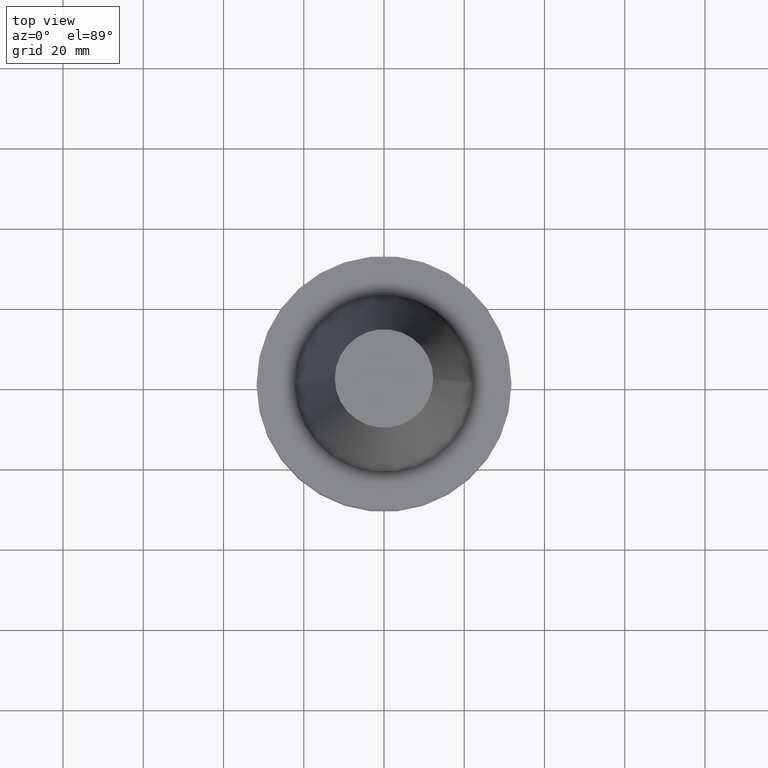
[diagram: clean part render]
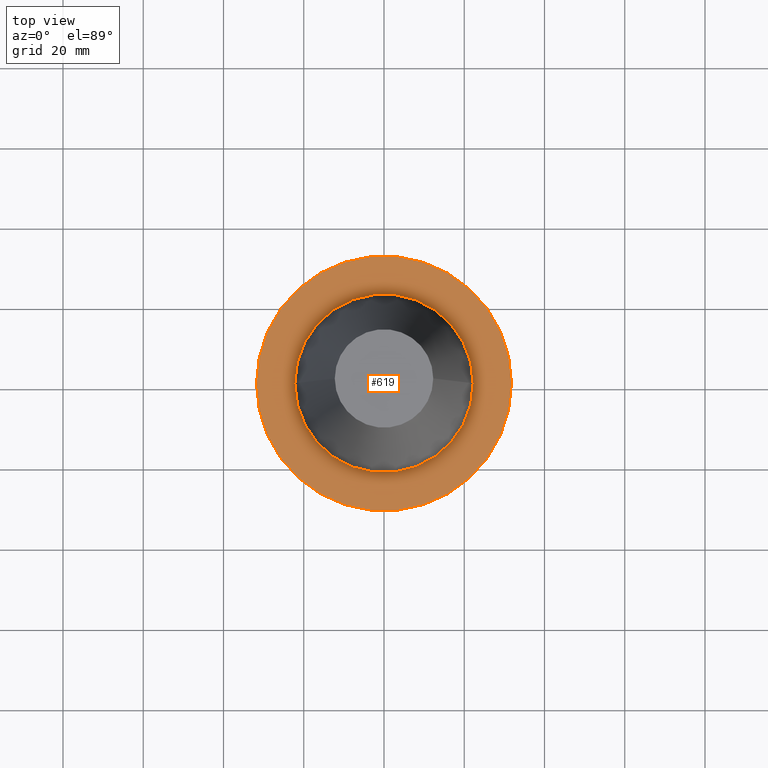
[diagram: same view with one face highlighted and labeled with its STEP entity id]
A machine part, top view. The second image highlights one B-rep face of the part: STEP entity #619.
In plain terms, the highlighted planar face has unit normal (0, 0, -1).
Its self-contained STEP definition (entity closure, byte-faithful):
#3 = EDGE_LOOP ( 'NONE', ( #535, #403 ) ) ;
#15 = DIRECTION ( 'NONE',  ( 1.000000000000000000, 0.000000000000000000, 0.000000000000000000 ) ) ;
#20 = DIRECTION ( 'NONE',  ( 1.000000000000000000, 0.000000000000000000, 0.000000000000000000 ) ) ;
#28 = CIRCLE ( 'NONE', #476, 22.22500000000000142 ) ;
#79 = DIRECTION ( 'NONE',  ( 1.000000000000000000, 0.000000000000000000, 0.000000000000000000 ) ) ;
#101 = VERTEX_POINT ( 'NONE', #334 ) ;
#124 = EDGE_CURVE ( 'NONE', #577, #776, #729, .T. ) ;
#128 = CARTESIAN_POINT ( 'NONE',  ( 0.000000000000000000, 31.75000000000000000, -3.174999999999993605 ) ) ;
#131 = CIRCLE ( 'NONE', #561, 22.22500000000000142 ) ;
#224 = DIRECTION ( 'NONE',  ( -0.000000000000000000, -0.000000000000000000, 1.000000000000000000 ) ) ;
#243 = ORIENTED_EDGE ( 'NONE', *, *, #495, .T. ) ;
#249 = CIRCLE ( 'NONE', #661, 31.75000000000000000 ) ;
#262 = DIRECTION ( 'NONE',  ( -0.000000000000000000, -0.000000000000000000, 1.000000000000000000 ) ) ;
#334 = CARTESIAN_POINT ( 'NONE',  ( -22.22500000000000142, 2.721777511104992849E-15, -3.174999999999997158 ) ) ;
#371 = DIRECTION ( 'NONE',  ( 0.000000000000000000, 0.000000000000000000, -1.000000000000000000 ) ) ;
#375 = PLANE ( 'NONE',  #629 ) ;
#382 = DIRECTION ( 'NONE',  ( -0.000000000000000000, -0.000000000000000000, 1.000000000000000000 ) ) ;
#403 = ORIENTED_EDGE ( 'NONE', *, *, #675, .F. ) ;
#431 = FACE_OUTER_BOUND ( 'NONE', #702, .T. ) ;
#456 = CARTESIAN_POINT ( 'NONE',  ( 0.000000000000000000, 0.000000000000000000, -3.174999999999997158 ) ) ;
#476 = AXIS2_PLACEMENT_3D ( 'NONE', #678, #382, #15 ) ;
#495 = EDGE_CURVE ( 'NONE', #776, #577, #249, .T. ) ;
#499 = CARTESIAN_POINT ( 'NONE',  ( 0.000000000000000000, 0.000000000000000000, -3.174999999999997158 ) ) ;
#527 = ORIENTED_EDGE ( 'NONE', *, *, #124, .T. ) ;
#531 = EDGE_CURVE ( 'NONE', #655, #101, #28, .T. ) ;
#535 = ORIENTED_EDGE ( 'NONE', *, *, #531, .F. ) ;
#550 = CARTESIAN_POINT ( 'NONE',  ( 22.22500000000000142, 0.000000000000000000, -3.174999999999997158 ) ) ;
#559 = DIRECTION ( 'NONE',  ( -0.000000000000000000, -0.000000000000000000, 1.000000000000000000 ) ) ;
#561 = AXIS2_PLACEMENT_3D ( 'NONE', #680, #262, #79 ) ;
#577 = VERTEX_POINT ( 'NONE', #615 ) ;
#597 = DIRECTION ( 'NONE',  ( -1.000000000000000000, 0.000000000000000000, -0.000000000000000000 ) ) ;
#603 = FACE_BOUND ( 'NONE', #3, .T. ) ;
#615 = CARTESIAN_POINT ( 'NONE',  ( 31.75000000000000000, 0.000000000000000000, -3.174999999999997158 ) ) ;
#619 = ADVANCED_FACE ( 'NONE', ( #603, #431 ), #375, .F. ) ;
#629 = AXIS2_PLACEMENT_3D ( 'NONE', #128, #371, #597 ) ;
#632 = CARTESIAN_POINT ( 'NONE',  ( -31.75000000000000000, 3.888253587292846476E-15, -3.174999999999997158 ) ) ;
#655 = VERTEX_POINT ( 'NONE', #550 ) ;
#661 = AXIS2_PLACEMENT_3D ( 'NONE', #499, #559, #20 ) ;
#675 = EDGE_CURVE ( 'NONE', #101, #655, #131, .T. ) ;
#678 = CARTESIAN_POINT ( 'NONE',  ( 0.000000000000000000, 0.000000000000000000, -3.174999999999997158 ) ) ;
#680 = CARTESIAN_POINT ( 'NONE',  ( 0.000000000000000000, 0.000000000000000000, -3.174999999999997158 ) ) ;
#702 = EDGE_LOOP ( 'NONE', ( #527, #243 ) ) ;
#729 = CIRCLE ( 'NONE', #757, 31.75000000000000000 ) ;
#736 = DIRECTION ( 'NONE',  ( 1.000000000000000000, 0.000000000000000000, 0.000000000000000000 ) ) ;
#757 = AXIS2_PLACEMENT_3D ( 'NONE', #456, #224, #736 ) ;
#776 = VERTEX_POINT ( 'NONE', #632 ) ;